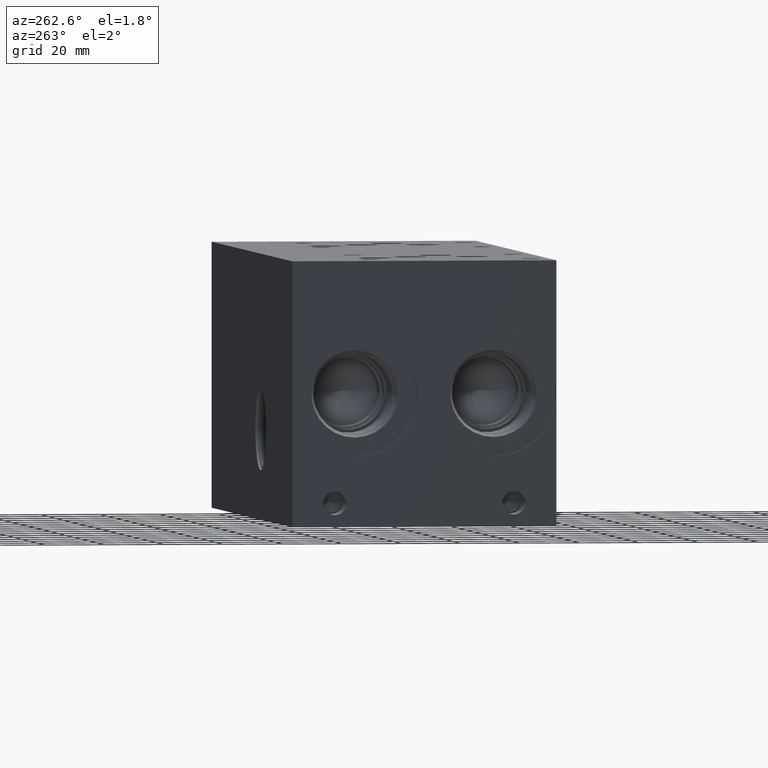
[diagram: clean part render]
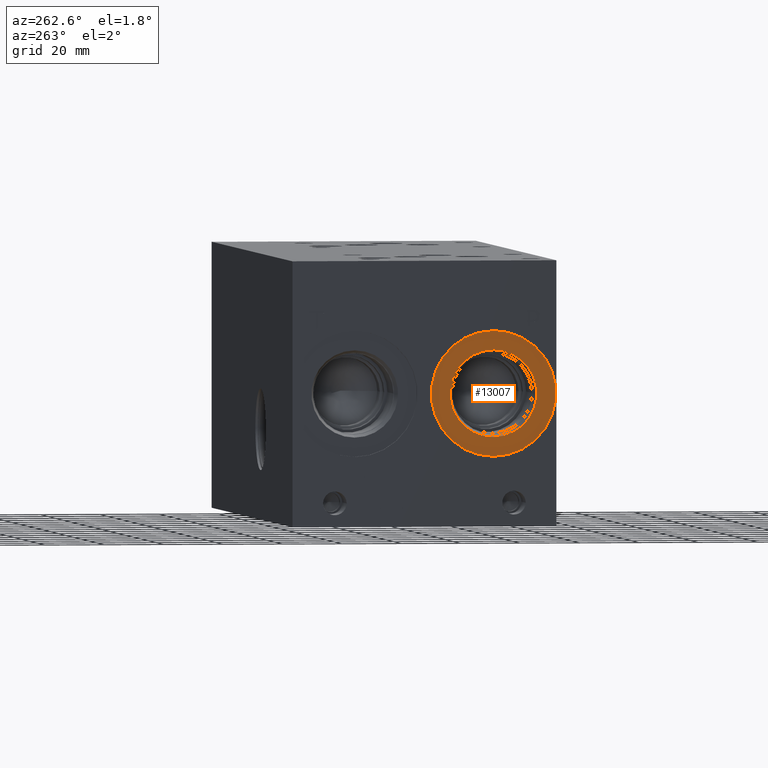
[diagram: same view with one face highlighted and labeled with its STEP entity id]
A machine part, auxiliary view. The second image highlights one B-rep face of the part: STEP entity #13007.
In plain terms, the highlighted planar face has unit normal (1, 0, 0).
Its self-contained STEP definition (entity closure, byte-faithful):
#425=CIRCLE('',#13790,21.0185);
#426=CIRCLE('',#13791,21.0185);
#427=CIRCLE('',#13793,14.5923);
#428=CIRCLE('',#13794,14.5923);
#557=FACE_BOUND('',#2506,.T.);
#1744=FACE_OUTER_BOUND('',#2505,.T.);
#2505=EDGE_LOOP('',(#11316,#11317));
#2506=EDGE_LOOP('',(#11318,#11319));
#6052=VERTEX_POINT('',#22497);
#6053=VERTEX_POINT('',#22499);
#6054=VERTEX_POINT('',#22503);
#6055=VERTEX_POINT('',#22504);
#7841=EDGE_CURVE('',#6052,#6053,#425,.T.);
#7842=EDGE_CURVE('',#6053,#6052,#426,.T.);
#7843=EDGE_CURVE('',#6054,#6055,#427,.T.);
#7844=EDGE_CURVE('',#6055,#6054,#428,.T.);
#11316=ORIENTED_EDGE('',*,*,#7842,.F.);
#11317=ORIENTED_EDGE('',*,*,#7841,.F.);
#11318=ORIENTED_EDGE('',*,*,#7843,.T.);
#11319=ORIENTED_EDGE('',*,*,#7844,.T.);
#11878=PLANE('',#13792);
#13007=ADVANCED_FACE('',(#1744,#557),#11878,.F.);
#13790=AXIS2_PLACEMENT_3D('',#22500,#16458,#16459);
#13791=AXIS2_PLACEMENT_3D('',#22501,#16460,#16461);
#13792=AXIS2_PLACEMENT_3D('',#22502,#16462,#16463);
#13793=AXIS2_PLACEMENT_3D('',#22505,#16464,#16465);
#13794=AXIS2_PLACEMENT_3D('',#22506,#16466,#16467);
#16458=DIRECTION('center_axis',(1.,0.,0.));
#16459=DIRECTION('ref_axis',(0.,0.,-1.));
#16460=DIRECTION('center_axis',(1.,0.,0.));
#16461=DIRECTION('ref_axis',(0.,0.,-1.));
#16462=DIRECTION('center_axis',(1.,0.,0.));
#16463=DIRECTION('ref_axis',(0.,0.,-1.));
#16464=DIRECTION('center_axis',(1.,0.,0.));
#16465=DIRECTION('ref_axis',(0.,0.,-1.));
#16466=DIRECTION('center_axis',(1.,0.,0.));
#16467=DIRECTION('ref_axis',(0.,0.,-1.));
#22497=CARTESIAN_POINT('',(0.7874,21.082,23.4315));
#22499=CARTESIAN_POINT('',(0.7874,21.082,65.4685));
#22500=CARTESIAN_POINT('Origin',(0.7874,21.082,44.45));
#22501=CARTESIAN_POINT('Origin',(0.7874,21.082,44.45));
#22502=CARTESIAN_POINT('Origin',(0.7874,21.082,59.0423));
#22503=CARTESIAN_POINT('',(0.7874,21.082,59.0423));
#22504=CARTESIAN_POINT('',(0.787399999999998,21.082,29.8577));
#22505=CARTESIAN_POINT('Origin',(0.7874,21.082,44.45));
#22506=CARTESIAN_POINT('Origin',(0.7874,21.082,44.45));